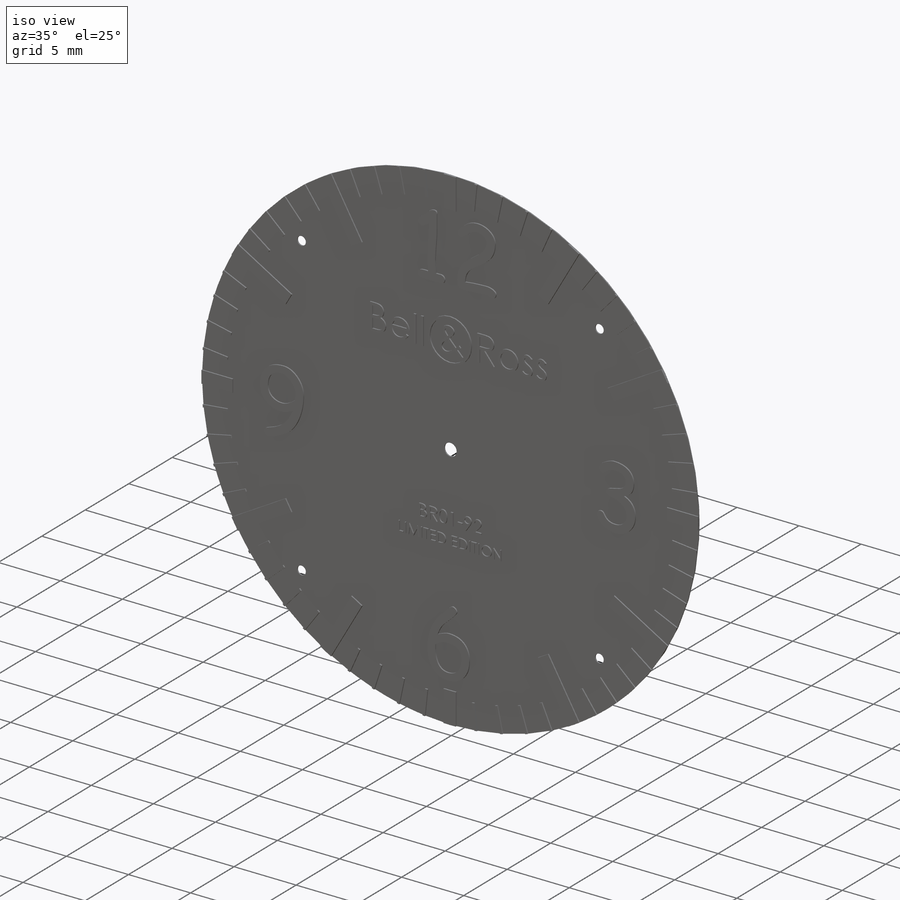
[diagram: iso view]
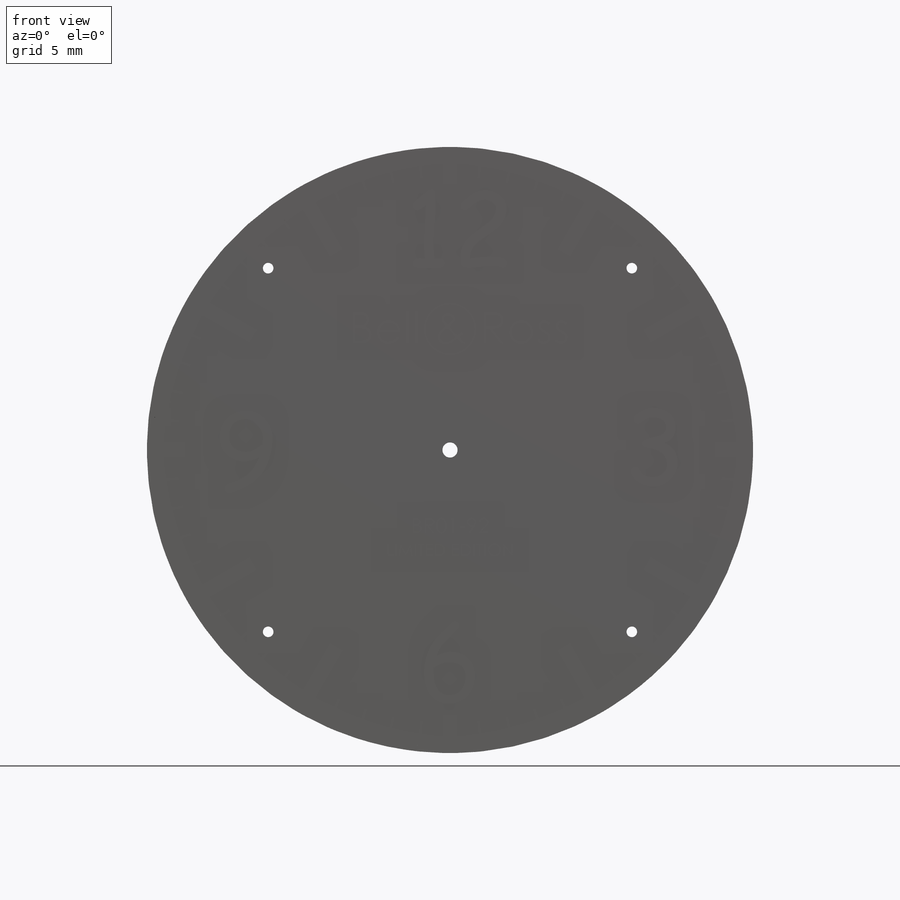
[diagram: front view]
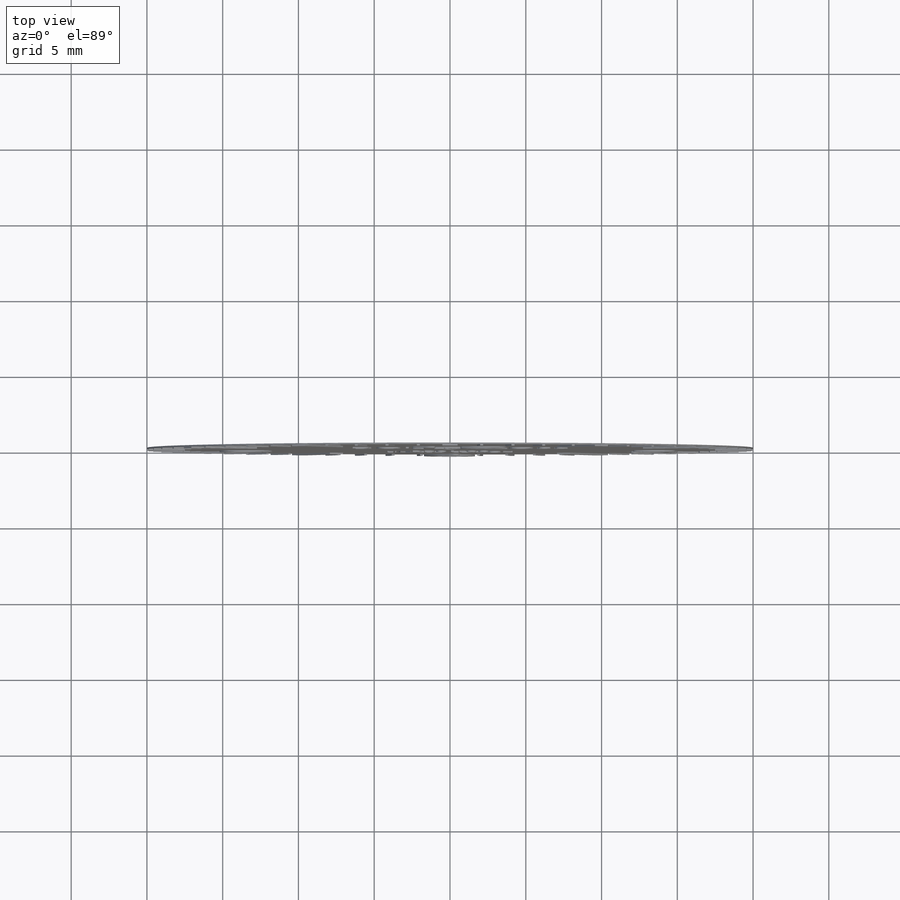
[diagram: top view]
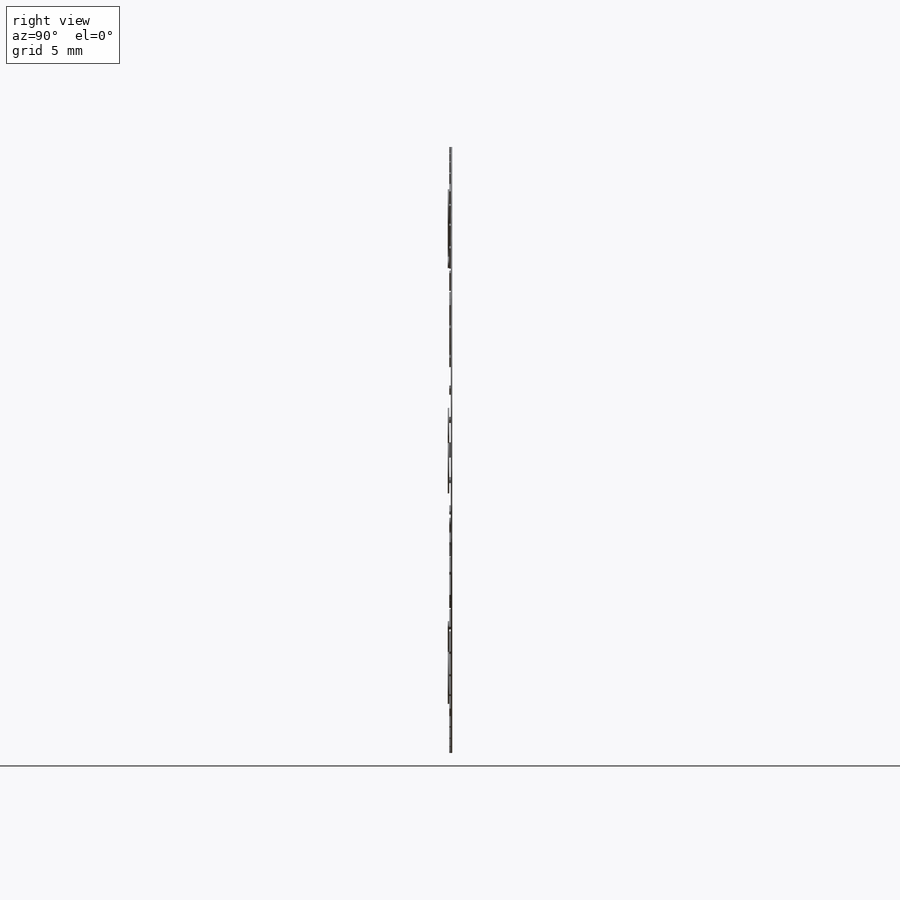
[diagram: right view]
SOLIDWORKS PART (.sldprt)
format: sldprt  version: not decoded by parser v0  size: 1,473,536 bytes
history: native  units: mm
features: sketch x14, extrude x10, cut_extrude x4, plane x3, pattern_circular x2, material x1 (+8 scaffold rows collapsed)
feature tree (42):
  scaffold x8  (default folders/planes/origin — collapsed)
  material  "Material <sin especificar>"
  plane  "Alzado"
  plane  "Planta"
  plane  "Vista lateral"
  sketch  "Croquis1"  dims[D1=40.0mm]
  extrude  "Saliente-Extruir1"  Depth=0.1mm
  sketch  "Croquis14"  dims[c1.D1=1.3mm c1.D5=1.3mm c2.D1=0.7mm c2.D2=3.0mm c2.D3=2.0mm c2.D4=1.0mm]
  cut_extrude  "Cortar-Extruir4"  Depth=10mm
  sketch  "Croquis9"  dims[D1=2.0mm D2=0.2mm D3=2.0mm]
  extrude  "Saliente-Extruir7"  Depth=0.1mm
  pattern_circular  "MatrizC2"  Count=60 Angle=360deg
  sketch  "Croquis2"  dims[D1=1.0mm D2=5.0mm]
  extrude  "Saliente-Extruir2"  Depth=0.1mm
  pattern_circular  "MatrizC1"  Count=12 Angle=360deg
  sketch  "Croquis3"
  cut_extrude  "Cortar-Extruir1"  Depth=0.1mm
  sketch  "Croquis4"
  cut_extrude  "Cortar-Extruir2"  Depth=0.1mm
  sketch  "Croquis5"  dims[D1=8.0mm D2=6.0mm]
  extrude  "Saliente-Extruir3"  Depth=0.1mm
  sketch  "Croquis6"  dims[D1=3.5mm D2=6.0mm]
  extrude  "Saliente-Extruir4"  Depth=0.1mm
  sketch  "Croquis7"  dims[D1=3.5mm D2=5.0mm D3=6.0mm]
  extrude  "Saliente-Extruir5"  Depth=0.1mm
  sketch  "Croquis8"  dims[D1=3.5mm D2=6.0mm]
  extrude  "Saliente-Extruir6"  Depth=0.1mm
  sketch  "Croquis11"  dims[D2=3.5mm D3=3.2mm D1=7.98mm]
  extrude  "Saliente-Extruir9"  Depth=0.1mm
  sketch  "Croquis10"  dims[D1=7.0mm D2=15.0mm]
  extrude  "Saliente-Extruir8"  Depth=0.1mm
  sketch  "Croquis12"  dims[D1=7.0mm D2=15.0mm D3=1.5mm]
  extrude  "Saliente-Extruir10"  Depth=0.1mm
  sketch  "Croquis13"  dims[D1=1.0mm]
  cut_extrude  "Cortar-Extruir3"  Depth=0.2mm
decode coverage: 28 of 30 modeling features carry decoded parameters
note: suppression state not decoded; provenance and decode notes live in map.json
